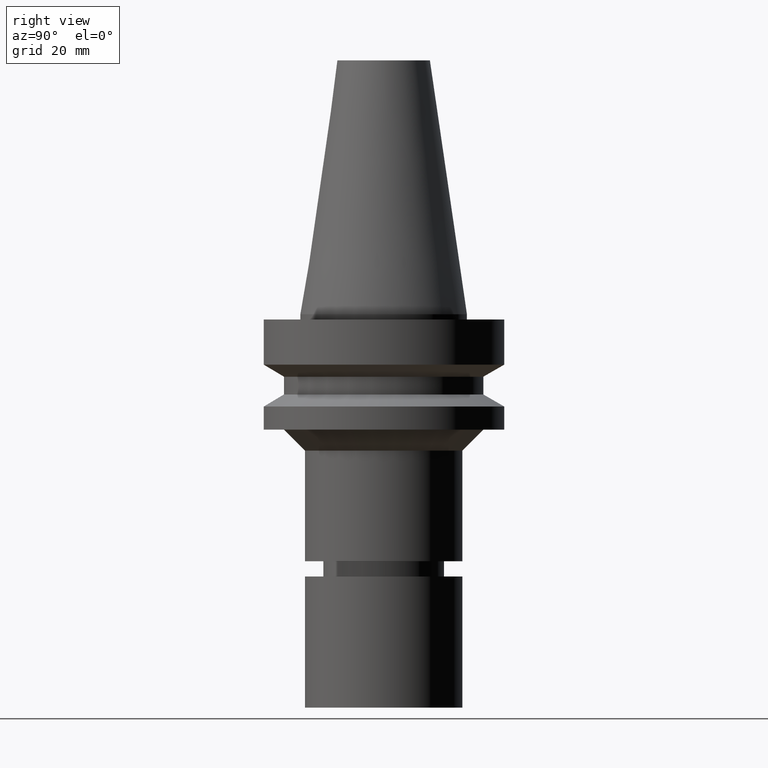
[diagram: clean part render]
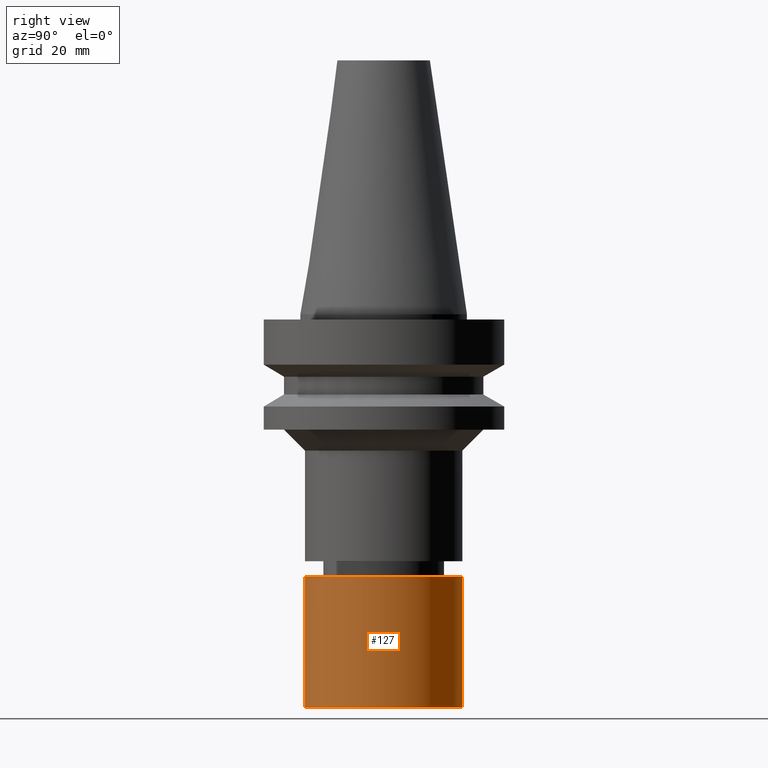
[diagram: same view with one face highlighted and labeled with its STEP entity id]
A machine part, right view. The second image highlights one B-rep face of the part: STEP entity #127.
In plain terms, the highlighted cylindrical surface (bore or boss wall) has radius 15 mm, axis along (0, 0, -1).
Its self-contained STEP definition (entity closure, byte-faithful):
#102=EDGE_CURVE('Unnamed[1]',#244,#244,#245,.T.);
#127=ADVANCED_FACE('Unnamed[1]',(#281,#282),#283,.T.);
#176=EDGE_CURVE('Unnamed[1]',#356,#356,#357,.T.);
#244=VERTEX_POINT('',#431);
#245=CIRCLE('',#432,15.0);
#281=FACE_BOUND('',#476,.T.);
#282=FACE_BOUND('',#477,.T.);
#283=CYLINDRICAL_SURFACE('',#478,15.0);
#356=VERTEX_POINT('',#569);
#357=CIRCLE('',#570,15.0000000000001);
#431=CARTESIAN_POINT('',(4.59242549680258E-015,15.0,-75.0));
#432=AXIS2_PLACEMENT_3D('',#628,#629,#630);
#476=EDGE_LOOP('',(#668));
#477=EDGE_LOOP('',(#669));
#478=AXIS2_PLACEMENT_3D('',#670,#671,#672);
#569=CARTESIAN_POINT('',(3.06161699786838E-015,15.0000000000001,-50.0));
#570=AXIS2_PLACEMENT_3D('',#752,#753,#754);
#628=CARTESIAN_POINT('',(4.59242549680258E-015,9.18485099360515E-015,-75.0));
#629=DIRECTION('',(6.12323399573677E-017,1.22464679914735E-016,-1.0));
#630=DIRECTION('',(-1.23259516440783E-032,1.0,1.22464679914735E-016));
#668=ORIENTED_EDGE('',*,*,#102,.F.);
#669=ORIENTED_EDGE('',*,*,#176,.T.);
#670=CARTESIAN_POINT('',(3.82702124733548E-015,7.65404249467096E-015,-62.5));
#671=DIRECTION('',(6.12323399573677E-017,1.22464679914735E-016,-1.0));
#672=DIRECTION('',(-1.23259516440783E-032,1.0,1.22464679914735E-016));
#752=CARTESIAN_POINT('',(3.06161699786838E-015,6.12323399573677E-015,-50.0));
#753=DIRECTION('',(6.12323399573677E-017,1.22464679914735E-016,-1.0));
#754=DIRECTION('',(-1.23259516440783E-032,1.0,1.22464679914735E-016));